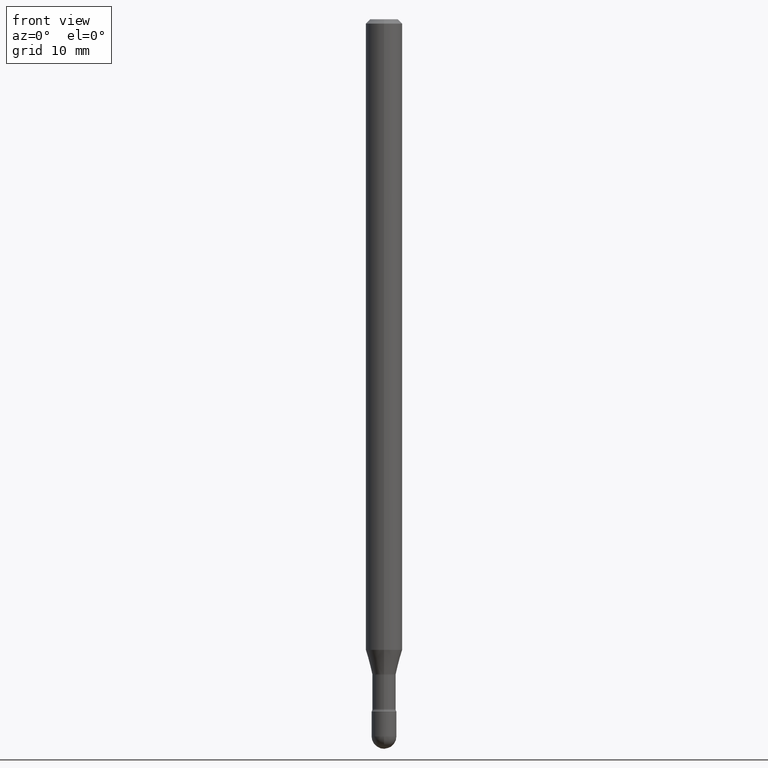
[diagram: clean part render]
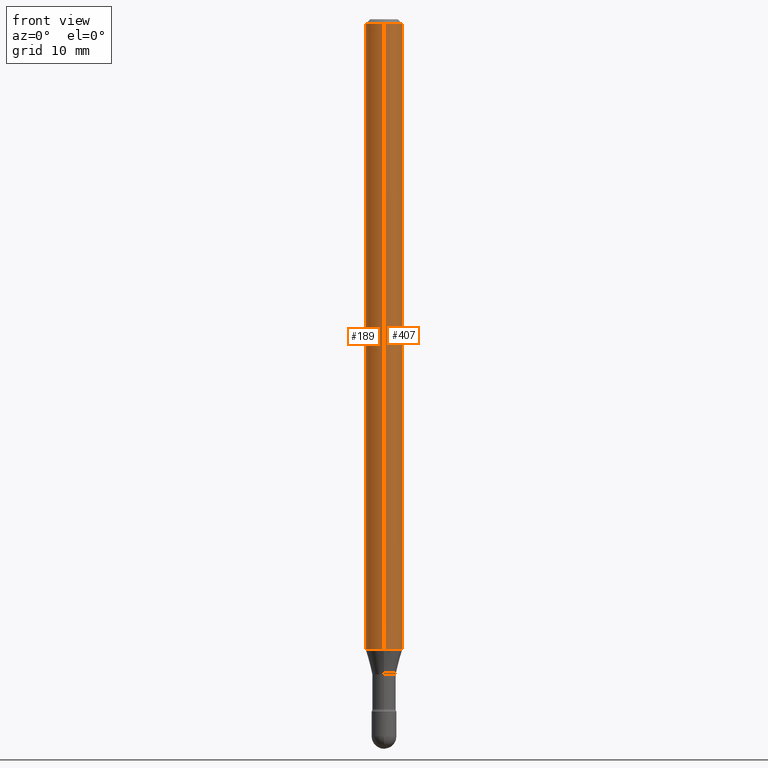
[diagram: same view with one multi-face feature highlighted, each face labeled with its STEP entity id]
A machine part, front view. The highlighted faces form ONE feature: a constant-radius fillet chain: 2 tangent blend faces with common blend radius 1.5875 mm. The faces share edges in the B-rep.
Their STEP definitions:
[1] entity #189 (Cylinder):
#8 = CARTESIAN_POINT ( 'NONE',  ( -4.364351673553916201E-16, -0.06250000000000000000, 6.962875189922793720E-16 ) ) ;
#14 = DIRECTION ( 'NONE',  ( -2.445507503827650270E-29, 3.491425921616532940E-15, 1.000000000000000000 ) ) ;
#26 = CARTESIAN_POINT ( 'NONE',  ( -4.364351673553912750E-16, -0.06250000000000005551, -0.01499999999999986587 ) ) ;
#49 = LINE ( 'NONE', #8, #275 ) ;
#92 = DIRECTION ( 'NONE',  ( -6.982962677686265922E-15, -1.000000000000000000, 3.483106191921935554E-15 ) ) ;
#120 = VERTEX_POINT ( 'NONE', #475 ) ;
#137 = EDGE_CURVE ( 'NONE', #516, #364, #530, .T. ) ;
#165 = ORIENTED_EDGE ( 'NONE', *, *, #469, .F. ) ;
#172 = EDGE_CURVE ( 'NONE', #360, #364, #49, .T. ) ;
#178 = EDGE_LOOP ( 'NONE', ( #165, #341, #285, #331 ) ) ;
#189 = ADVANCED_FACE ( 'NONE', ( #507 ), #552, .T. ) ;
#191 = CARTESIAN_POINT ( 'NONE',  ( -1.169113584055446105E-44, 1.669184350826100908E-30, 4.780733988912460139E-16 ) ) ;
#195 = AXIS2_PLACEMENT_3D ( 'NONE', #207, #256, #554 ) ;
#207 = CARTESIAN_POINT ( 'NONE',  ( 5.284355947452393221E-29, -7.544420659150042913E-15, -2.160842254289322195 ) ) ;
#232 = LINE ( 'NONE', #314, #239 ) ;
#239 = VECTOR ( 'NONE', #503, 39.37007874015748143 ) ;
#256 = DIRECTION ( 'NONE',  ( -2.445507503827650270E-29, 3.491425921616532940E-15, 1.000000000000000000 ) ) ;
#275 = VECTOR ( 'NONE', #14, 39.37007874015748143 ) ;
#285 = ORIENTED_EDGE ( 'NONE', *, *, #172, .T. ) ;
#313 = CARTESIAN_POINT ( 'NONE',  ( -4.364351673553386185E-16, -0.06250000000000750788, -2.160842254289322195 ) ) ;
#314 = CARTESIAN_POINT ( 'NONE',  ( 4.440892098500625669E-16, 0.06250000000000000000, 2.598592787902127545E-16 ) ) ;
#317 = CIRCLE ( 'NONE', #195, 0.06250000000000000000 ) ;
#318 = DIRECTION ( 'NONE',  ( -2.445507503827650270E-29, 3.491425921616532940E-15, 1.000000000000000000 ) ) ;
#326 = AXIS2_PLACEMENT_3D ( 'NONE', #394, #478, #92 ) ;
#331 = ORIENTED_EDGE ( 'NONE', *, *, #137, .F. ) ;
#341 = ORIENTED_EDGE ( 'NONE', *, *, #559, .T. ) ;
#360 = VERTEX_POINT ( 'NONE', #313 ) ;
#361 = AXIS2_PLACEMENT_3D ( 'NONE', #191, #318, #363 ) ;
#363 = DIRECTION ( 'NONE',  ( -6.982962677686265922E-15, -1.000000000000000000, 3.491425921616532546E-15 ) ) ;
#364 = VERTEX_POINT ( 'NONE', #26 ) ;
#377 = CARTESIAN_POINT ( 'NONE',  ( 4.440892098501157657E-16, 0.06249999999999995143, -0.01500000000000030129 ) ) ;
#394 = CARTESIAN_POINT ( 'NONE',  ( 3.668261255741495776E-31, -5.237138882424828228E-17, -0.01500000000000008271 ) ) ;
#469 = EDGE_CURVE ( 'NONE', #120, #516, #232, .T. ) ;
#475 = CARTESIAN_POINT ( 'NONE',  ( 4.440892098501156671E-16, 0.06249999999999250599, -2.160842254289322639 ) ) ;
#478 = DIRECTION ( 'NONE',  ( -2.445507503827650270E-29, 3.491425921616532940E-15, 1.000000000000000000 ) ) ;
#503 = DIRECTION ( 'NONE',  ( -2.445507503827650270E-29, 3.491425921616532940E-15, 1.000000000000000000 ) ) ;
#507 = FACE_OUTER_BOUND ( 'NONE', #178, .T. ) ;
#516 = VERTEX_POINT ( 'NONE', #377 ) ;
#530 = CIRCLE ( 'NONE', #326, 0.06250000000000000000 ) ;
#552 = CYLINDRICAL_SURFACE ( 'NONE', #361, 0.06250000000000000000 ) ;
#554 = DIRECTION ( 'NONE',  ( -6.982962677686265922E-15, -1.000000000000000000, 4.370956789862821150E-15 ) ) ;
#559 = EDGE_CURVE ( 'NONE', #120, #360, #317, .T. ) ;
[2] entity #407 (Cylinder):
#4 = AXIS2_PLACEMENT_3D ( 'NONE', #171, #67, #457 ) ;
#8 = CARTESIAN_POINT ( 'NONE',  ( -4.364351673553916201E-16, -0.06250000000000000000, 6.962875189922793720E-16 ) ) ;
#14 = DIRECTION ( 'NONE',  ( -2.445507503827650270E-29, 3.491425921616532940E-15, 1.000000000000000000 ) ) ;
#26 = CARTESIAN_POINT ( 'NONE',  ( -4.364351673553912750E-16, -0.06250000000000005551, -0.01499999999999986587 ) ) ;
#34 = DIRECTION ( 'NONE',  ( -2.445507503827650270E-29, 3.491425921616532940E-15, 1.000000000000000000 ) ) ;
#37 = CARTESIAN_POINT ( 'NONE',  ( 3.668261255741495776E-31, -5.237138882424828228E-17, -0.01500000000000008271 ) ) ;
#49 = LINE ( 'NONE', #8, #275 ) ;
#67 = DIRECTION ( 'NONE',  ( -2.445507503827650270E-29, 3.491425921616532940E-15, 1.000000000000000000 ) ) ;
#75 = FACE_OUTER_BOUND ( 'NONE', #344, .T. ) ;
#120 = VERTEX_POINT ( 'NONE', #475 ) ;
#127 = AXIS2_PLACEMENT_3D ( 'NONE', #37, #429, #336 ) ;
#171 = CARTESIAN_POINT ( 'NONE',  ( 5.284355947452393221E-29, -7.544420659150042913E-15, -2.160842254289322195 ) ) ;
#172 = EDGE_CURVE ( 'NONE', #360, #364, #49, .T. ) ;
#188 = CIRCLE ( 'NONE', #127, 0.06250000000000000000 ) ;
#198 = DIRECTION ( 'NONE',  ( -6.982962677686265922E-15, -1.000000000000000000, 3.491425921616532546E-15 ) ) ;
#232 = LINE ( 'NONE', #314, #239 ) ;
#239 = VECTOR ( 'NONE', #503, 39.37007874015748143 ) ;
#241 = CYLINDRICAL_SURFACE ( 'NONE', #422, 0.06250000000000000000 ) ;
#275 = VECTOR ( 'NONE', #14, 39.37007874015748143 ) ;
#288 = ORIENTED_EDGE ( 'NONE', *, *, #172, .F. ) ;
#313 = CARTESIAN_POINT ( 'NONE',  ( -4.364351673553386185E-16, -0.06250000000000750788, -2.160842254289322195 ) ) ;
#314 = CARTESIAN_POINT ( 'NONE',  ( 4.440892098500625669E-16, 0.06250000000000000000, 2.598592787902127545E-16 ) ) ;
#336 = DIRECTION ( 'NONE',  ( -6.982962677686265922E-15, -1.000000000000000000, 3.483106191921935554E-15 ) ) ;
#344 = EDGE_LOOP ( 'NONE', ( #547, #376, #446, #288 ) ) ;
#360 = VERTEX_POINT ( 'NONE', #313 ) ;
#364 = VERTEX_POINT ( 'NONE', #26 ) ;
#376 = ORIENTED_EDGE ( 'NONE', *, *, #469, .T. ) ;
#377 = CARTESIAN_POINT ( 'NONE',  ( 4.440892098501157657E-16, 0.06249999999999995143, -0.01500000000000030129 ) ) ;
#407 = ADVANCED_FACE ( 'NONE', ( #75 ), #241, .T. ) ;
#416 = CARTESIAN_POINT ( 'NONE',  ( -1.169113584055446105E-44, 1.669184350826100908E-30, 4.780733988912460139E-16 ) ) ;
#422 = AXIS2_PLACEMENT_3D ( 'NONE', #416, #34, #198 ) ;
#429 = DIRECTION ( 'NONE',  ( -2.445507503827650270E-29, 3.491425921616532940E-15, 1.000000000000000000 ) ) ;
#442 = EDGE_CURVE ( 'NONE', #360, #120, #541, .T. ) ;
#446 = ORIENTED_EDGE ( 'NONE', *, *, #527, .F. ) ;
#457 = DIRECTION ( 'NONE',  ( -6.982962677686265922E-15, -1.000000000000000000, 4.370956789862821150E-15 ) ) ;
#469 = EDGE_CURVE ( 'NONE', #120, #516, #232, .T. ) ;
#475 = CARTESIAN_POINT ( 'NONE',  ( 4.440892098501156671E-16, 0.06249999999999250599, -2.160842254289322639 ) ) ;
#503 = DIRECTION ( 'NONE',  ( -2.445507503827650270E-29, 3.491425921616532940E-15, 1.000000000000000000 ) ) ;
#516 = VERTEX_POINT ( 'NONE', #377 ) ;
#527 = EDGE_CURVE ( 'NONE', #364, #516, #188, .T. ) ;
#541 = CIRCLE ( 'NONE', #4, 0.06250000000000000000 ) ;
#547 = ORIENTED_EDGE ( 'NONE', *, *, #442, .T. ) ;